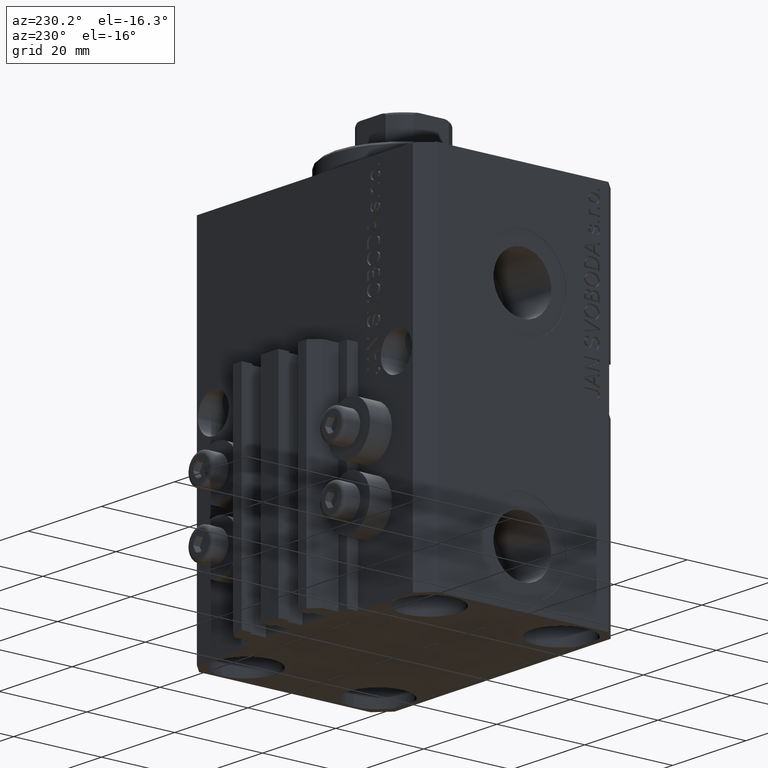
[diagram: clean part render]
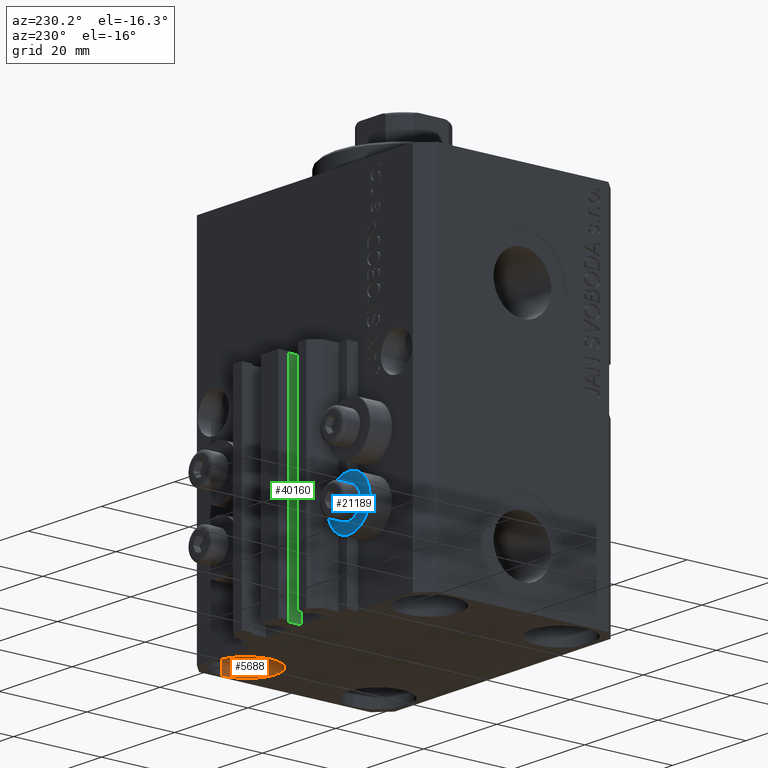
[diagram: same view with three faces highlighted in distinct colors, each labeled with its STEP entity id]
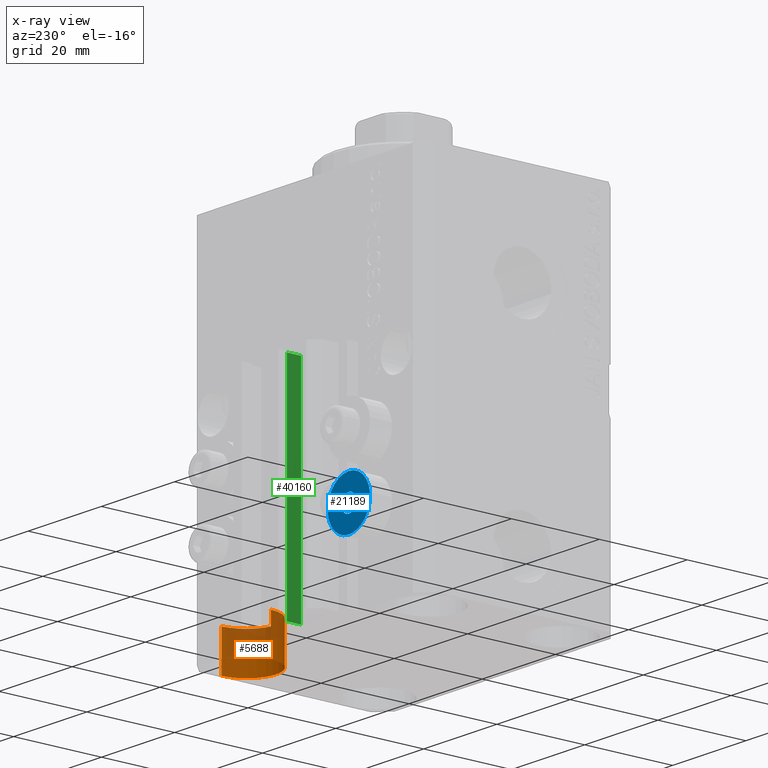
[diagram: x-ray of the same camera — body ghosted, the three highlighted faces saturated]
A machine part, auxiliary view with three faces highlighted in distinct colors.
The next image is the same camera in x-ray (body ghosted, the three faces saturated) — at least one of them is partly hidden behind the body in this view.
Their STEP definitions:

[orange] entity #5688 — the highlighted cylindrical surface (partial cylindrical patch) has radius 6.75 mm, axis along (-0, -0, -1).
#2138 = ORIENTED_EDGE ( 'NONE', *, *, #12430, .T. ) ;
#3821 = ORIENTED_EDGE ( 'NONE', *, *, #42845, .F. ) ;
#3981 = CYLINDRICAL_SURFACE ( 'NONE', #27670, 6.749999999958452790 ) ;
#5189 = VERTEX_POINT ( 'NONE', #25968 ) ;
#5688 = ADVANCED_FACE ( 'NONE', ( #7565 ), #3981, .F. ) ;
#7316 = EDGE_LOOP ( 'NONE', ( #2138, #12926, #3821, #33564 ) ) ;
#7565 = FACE_OUTER_BOUND ( 'NONE', #7316, .T. ) ;
#7629 = CARTESIAN_POINT ( 'NONE',  ( 18.25000000004154543, 15.00000000000000888, -73.00000000000001421 ) ) ;
#11565 = DIRECTION ( 'NONE',  ( -0.000000000000000000, -0.000000000000000000, -1.000000000000000000 ) ) ;
#11696 = LINE ( 'NONE', #7629, #42627 ) ;
#11934 = DIRECTION ( 'NONE',  ( -0.000000000000000000, -0.000000000000000000, -1.000000000000000000 ) ) ;
#12271 = LINE ( 'NONE', #40900, #35703 ) ;
#12430 = EDGE_CURVE ( 'NONE', #5189, #31024, #28507, .T. ) ;
#12926 = ORIENTED_EDGE ( 'NONE', *, *, #32396, .T. ) ;
#13303 = AXIS2_PLACEMENT_3D ( 'NONE', #35866, #18428, #32979 ) ;
#14727 = AXIS2_PLACEMENT_3D ( 'NONE', #17328, #46675, #45742 ) ;
#15385 = VERTEX_POINT ( 'NONE', #45414 ) ;
#17328 = CARTESIAN_POINT ( 'NONE',  ( 24.99999999999999645, 15.00000000000000888, -82.00000000000000000 ) ) ;
#18428 = DIRECTION ( 'NONE',  ( -0.000000000000000000, -0.000000000000000000, 1.000000000000000000 ) ) ;
#22110 = DIRECTION ( 'NONE',  ( -1.000000000000000000, 0.000000000000000000, 0.000000000000000000 ) ) ;
#25968 = CARTESIAN_POINT ( 'NONE',  ( 18.25000000004154543, 15.00000000000000888, -73.00000000000001421 ) ) ;
#27670 = AXIS2_PLACEMENT_3D ( 'NONE', #40968, #33549, #22110 ) ;
#28507 = CIRCLE ( 'NONE', #13303, 6.749999999958452790 ) ;
#31024 = VERTEX_POINT ( 'NONE', #43908 ) ;
#32396 = EDGE_CURVE ( 'NONE', #31024, #15385, #12271, .T. ) ;
#32979 = DIRECTION ( 'NONE',  ( 1.000000000000000000, 0.000000000000000000, 0.000000000000000000 ) ) ;
#33384 = VERTEX_POINT ( 'NONE', #43036 ) ;
#33549 = DIRECTION ( 'NONE',  ( -0.000000000000000000, -0.000000000000000000, -1.000000000000000000 ) ) ;
#33564 = ORIENTED_EDGE ( 'NONE', *, *, #33734, .F. ) ;
#33734 = EDGE_CURVE ( 'NONE', #5189, #33384, #11696, .T. ) ;
#35703 = VECTOR ( 'NONE', #11565, 1000.000000000000000 ) ;
#35866 = CARTESIAN_POINT ( 'NONE',  ( 24.99999999999999645, 15.00000000000000888, -73.00000000000001421 ) ) ;
#39891 = CIRCLE ( 'NONE', #14727, 6.749999999958452790 ) ;
#40900 = CARTESIAN_POINT ( 'NONE',  ( 31.74999999995845101, 15.00000000000000888, -73.00000000000001421 ) ) ;
#40968 = CARTESIAN_POINT ( 'NONE',  ( 24.99999999999999645, 15.00000000000000888, -73.00000000000001421 ) ) ;
#42627 = VECTOR ( 'NONE', #11934, 1000.000000000000000 ) ;
#42845 = EDGE_CURVE ( 'NONE', #33384, #15385, #39891, .T. ) ;
#43036 = CARTESIAN_POINT ( 'NONE',  ( 18.25000000004154543, 15.00000000000000888, -82.00000000000000000 ) ) ;
#43908 = CARTESIAN_POINT ( 'NONE',  ( 31.74999999995845101, 15.00000000000000888, -73.00000000000001421 ) ) ;
#45414 = CARTESIAN_POINT ( 'NONE',  ( 31.74999999995845101, 15.00000000000000888, -82.00000000000000000 ) ) ;
#45742 = DIRECTION ( 'NONE',  ( 1.000000000000000000, 0.000000000000000000, 0.000000000000000000 ) ) ;
#46675 = DIRECTION ( 'NONE',  ( -0.000000000000000000, -0.000000000000000000, 1.000000000000000000 ) ) ;

[blue] entity #21189 — the highlighted planar face has unit normal (0, -1, 0).
#601 = PLANE ( 'NONE',  #46923 ) ;
#759 = EDGE_CURVE ( 'NONE', #19932, #30334, #29006, .T. ) ;
#1103 = ORIENTED_EDGE ( 'NONE', *, *, #30008, .T. ) ;
#1362 = CIRCLE ( 'NONE', #32574, 5.799999999999999822 ) ;
#1868 = DIRECTION ( 'NONE',  ( -0.000000000000000000, -1.000000000000000000, -0.000000000000000000 ) ) ;
#2344 = CARTESIAN_POINT ( 'NONE',  ( -18.00000000000000355, 27.49999999996051514, -58.20000000000000284 ) ) ;
#3574 = DIRECTION ( 'NONE',  ( 0.000000000000000000, 0.000000000000000000, -1.000000000000000000 ) ) ;
#6498 = DIRECTION ( 'NONE',  ( 0.000000000000000000, 0.000000000000000000, -1.000000000000000000 ) ) ;
#7053 = DIRECTION ( 'NONE',  ( 0.000000000000000000, 0.000000000000000000, 1.000000000000000000 ) ) ;
#8467 = AXIS2_PLACEMENT_3D ( 'NONE', #21701, #36262, #3574 ) ;
#9961 = VERTEX_POINT ( 'NONE', #23175 ) ;
#10445 = ORIENTED_EDGE ( 'NONE', *, *, #25597, .F. ) ;
#12917 = CARTESIAN_POINT ( 'NONE',  ( -18.00000000000000355, 27.49999999996051514, -66.00000000000000000 ) ) ;
#15187 = ORIENTED_EDGE ( 'NONE', *, *, #759, .T. ) ;
#17085 = CARTESIAN_POINT ( 'NONE',  ( -18.00000000000000355, 27.49999999996051514, -62.00000000000000000 ) ) ;
#17432 = CARTESIAN_POINT ( 'NONE',  ( -18.00000000000000355, 27.49999999996051514, -64.00000000000000000 ) ) ;
#18643 = EDGE_LOOP ( 'NONE', ( #10445, #19992 ) ) ;
#19932 = VERTEX_POINT ( 'NONE', #12917 ) ;
#19992 = ORIENTED_EDGE ( 'NONE', *, *, #45294, .F. ) ;
#20226 = DIRECTION ( 'NONE',  ( 0.000000000000000000, 0.000000000000000000, -1.000000000000000000 ) ) ;
#20518 = CIRCLE ( 'NONE', #28885, 2.000000000000001776 ) ;
#21189 = ADVANCED_FACE ( 'NONE', ( #40675, #28976 ), #601, .F. ) ;
#21701 = CARTESIAN_POINT ( 'NONE',  ( -18.00000000000000355, 27.49999999996051514, -64.00000000000000000 ) ) ;
#23175 = CARTESIAN_POINT ( 'NONE',  ( -18.00000000000000355, 27.49999999996051514, -69.79999999999999716 ) ) ;
#23822 = AXIS2_PLACEMENT_3D ( 'NONE', #38722, #35367, #6498 ) ;
#25597 = EDGE_CURVE ( 'NONE', #9961, #36335, #1362, .T. ) ;
#26353 = DIRECTION ( 'NONE',  ( 0.000000000000000000, -1.000000000000000000, 0.000000000000000000 ) ) ;
#26909 = CARTESIAN_POINT ( 'NONE',  ( -18.00000000000000355, 27.49999999996051514, -64.00000000000000000 ) ) ;
#28885 = AXIS2_PLACEMENT_3D ( 'NONE', #17432, #38688, #38918 ) ;
#28976 = FACE_OUTER_BOUND ( 'NONE', #18643, .T. ) ;
#29006 = CIRCLE ( 'NONE', #8467, 2.000000000000001776 ) ;
#30008 = EDGE_CURVE ( 'NONE', #30334, #19932, #20518, .T. ) ;
#30334 = VERTEX_POINT ( 'NONE', #17085 ) ;
#32574 = AXIS2_PLACEMENT_3D ( 'NONE', #26909, #1868, #20226 ) ;
#33659 = EDGE_LOOP ( 'NONE', ( #1103, #15187 ) ) ;
#35367 = DIRECTION ( 'NONE',  ( -0.000000000000000000, -1.000000000000000000, -0.000000000000000000 ) ) ;
#36159 = CARTESIAN_POINT ( 'NONE',  ( -12.20000000000000284, 27.49999999996051514, -64.00000000000000000 ) ) ;
#36262 = DIRECTION ( 'NONE',  ( -0.000000000000000000, -1.000000000000000000, -0.000000000000000000 ) ) ;
#36335 = VERTEX_POINT ( 'NONE', #2344 ) ;
#37545 = CIRCLE ( 'NONE', #23822, 5.799999999999999822 ) ;
#38688 = DIRECTION ( 'NONE',  ( -0.000000000000000000, -1.000000000000000000, -0.000000000000000000 ) ) ;
#38722 = CARTESIAN_POINT ( 'NONE',  ( -18.00000000000000355, 27.49999999996051514, -64.00000000000000000 ) ) ;
#38918 = DIRECTION ( 'NONE',  ( 0.000000000000000000, 0.000000000000000000, -1.000000000000000000 ) ) ;
#40675 = FACE_BOUND ( 'NONE', #33659, .T. ) ;
#45294 = EDGE_CURVE ( 'NONE', #36335, #9961, #37545, .T. ) ;
#46923 = AXIS2_PLACEMENT_3D ( 'NONE', #36159, #26353, #7053 ) ;

[green] entity #40160 — the highlighted planar face has unit normal (-1, 0, 0).
#446 = EDGE_CURVE ( 'NONE', #9260, #33231, #37231, .T. ) ;
#939 = AXIS2_PLACEMENT_3D ( 'NONE', #18674, #29402, #33700 ) ;
#1350 = CARTESIAN_POINT ( 'NONE',  ( -1.600000000000003197, 27.89999999999950120, -82.00000000000000000 ) ) ;
#2839 = EDGE_CURVE ( 'NONE', #33231, #4667, #29045, .T. ) ;
#3150 = EDGE_CURVE ( 'NONE', #9260, #34055, #16163, .T. ) ;
#4540 = CARTESIAN_POINT ( 'NONE',  ( -1.600000000000003197, 27.89999999999950120, -82.00000000000000000 ) ) ;
#4641 = LINE ( 'NONE', #40428, #9648 ) ;
#4667 = VERTEX_POINT ( 'NONE', #35134 ) ;
#5426 = DIRECTION ( 'NONE',  ( -6.776263578034385456E-17, -1.000000000000000000, 0.000000000000000000 ) ) ;
#5428 = CARTESIAN_POINT ( 'NONE',  ( -1.600000000000000755, 24.69999999999949480, -82.00000000000000000 ) ) ;
#6924 = VECTOR ( 'NONE', #11238, 1000.000000000000000 ) ;
#8952 = CARTESIAN_POINT ( 'NONE',  ( -1.600000000000003197, 27.89999999999950120, -33.00000000000000000 ) ) ;
#9260 = VERTEX_POINT ( 'NONE', #1350 ) ;
#9648 = VECTOR ( 'NONE', #11338, 1000.000000000000000 ) ;
#11238 = DIRECTION ( 'NONE',  ( 0.000000000000000000, 0.000000000000000000, 1.000000000000000000 ) ) ;
#11338 = DIRECTION ( 'NONE',  ( 0.000000000000000000, 0.000000000000000000, 1.000000000000000000 ) ) ;
#16163 = LINE ( 'NONE', #42170, #30648 ) ;
#17570 = ORIENTED_EDGE ( 'NONE', *, *, #22652, .T. ) ;
#18674 = CARTESIAN_POINT ( 'NONE',  ( -1.600000000000000533, 27.89999999999950120, -82.00000000000000000 ) ) ;
#22652 = EDGE_CURVE ( 'NONE', #34055, #4667, #4641, .T. ) ;
#22883 = ORIENTED_EDGE ( 'NONE', *, *, #2839, .F. ) ;
#25925 = EDGE_LOOP ( 'NONE', ( #22883, #39701, #27946, #17570 ) ) ;
#27946 = ORIENTED_EDGE ( 'NONE', *, *, #3150, .T. ) ;
#29045 = LINE ( 'NONE', #46733, #29071 ) ;
#29071 = VECTOR ( 'NONE', #36452, 1000.000000000000000 ) ;
#29402 = DIRECTION ( 'NONE',  ( -1.000000000000000000, 6.776263578034385456E-17, 0.000000000000000000 ) ) ;
#30648 = VECTOR ( 'NONE', #5426, 1000.000000000000000 ) ;
#33231 = VERTEX_POINT ( 'NONE', #8952 ) ;
#33700 = DIRECTION ( 'NONE',  ( -6.776263578034385456E-17, -1.000000000000000000, 0.000000000000000000 ) ) ;
#34055 = VERTEX_POINT ( 'NONE', #5428 ) ;
#35134 = CARTESIAN_POINT ( 'NONE',  ( -1.600000000000000755, 24.69999999999949480, -33.00000000000000000 ) ) ;
#36452 = DIRECTION ( 'NONE',  ( -6.776263578034385456E-17, -1.000000000000000000, 0.000000000000000000 ) ) ;
#37231 = LINE ( 'NONE', #4540, #6924 ) ;
#39701 = ORIENTED_EDGE ( 'NONE', *, *, #446, .F. ) ;
#40160 = ADVANCED_FACE ( 'NONE', ( #47080 ), #40390, .T. ) ;
#40390 = PLANE ( 'NONE',  #939 ) ;
#40428 = CARTESIAN_POINT ( 'NONE',  ( -1.600000000000000755, 24.69999999999949480, -82.00000000000000000 ) ) ;
#42170 = CARTESIAN_POINT ( 'NONE',  ( -1.600000000000000533, 27.89999999999950120, -82.00000000000000000 ) ) ;
#46733 = CARTESIAN_POINT ( 'NONE',  ( -1.600000000000000533, 27.89999999999950120, -33.00000000000000000 ) ) ;
#47080 = FACE_OUTER_BOUND ( 'NONE', #25925, .T. ) ;